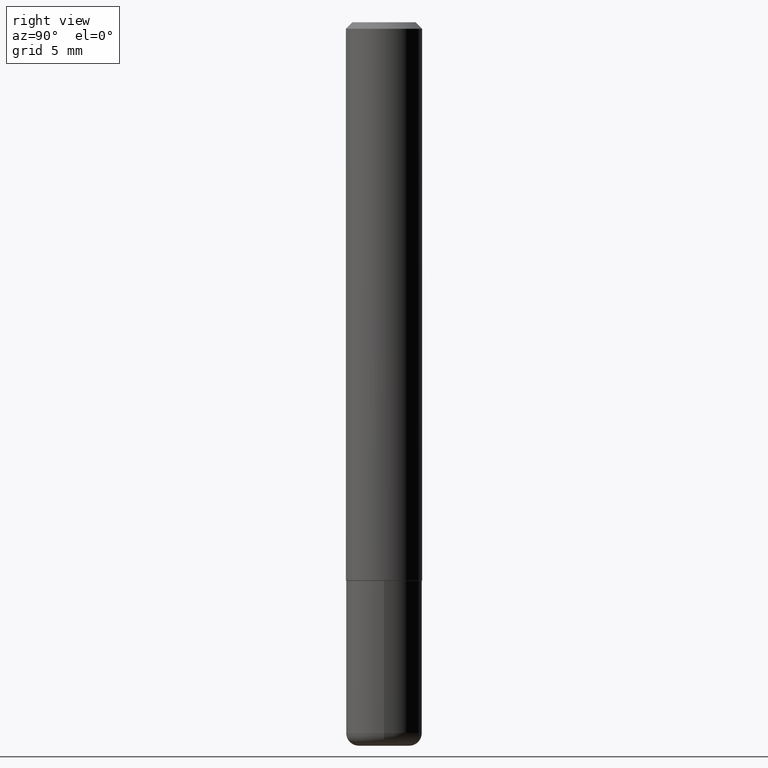
[diagram: clean part render]
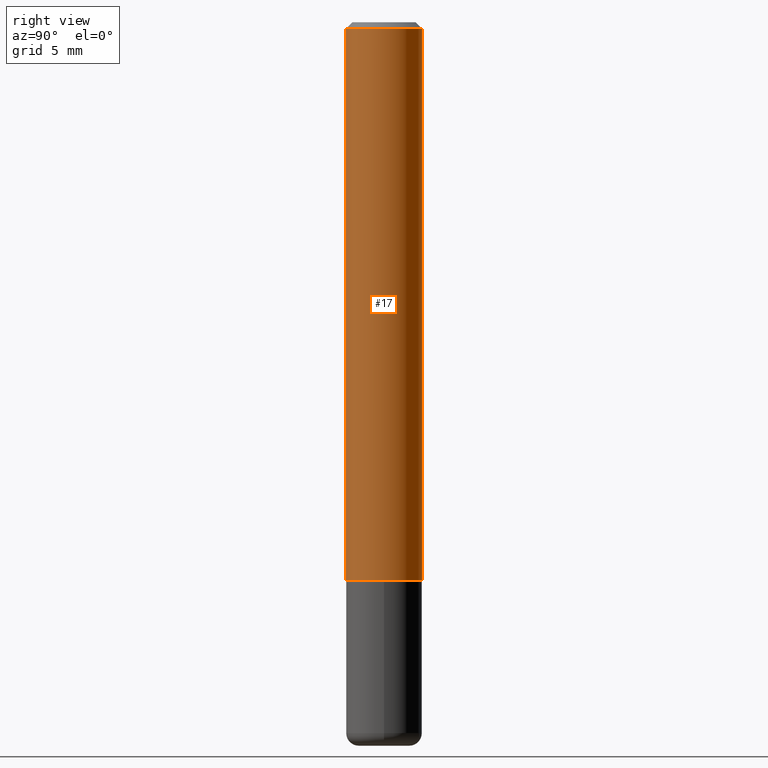
[diagram: same view with one face highlighted and labeled with its STEP entity id]
A machine part, right view. The second image highlights one B-rep face of the part: STEP entity #17.
In plain terms, the highlighted cylindrical surface (partial cylindrical patch) has radius 2.9997 mm, axis along (-0, 0, 1).
Its self-contained STEP definition (entity closure, byte-faithful):
#17 = ADVANCED_FACE ( 'NONE', ( #155 ), #46, .T. ) ;
#35 = ORIENTED_EDGE ( 'NONE', *, *, #110, .F. ) ;
#38 = VERTEX_POINT ( 'NONE', #307 ) ;
#46 = CYLINDRICAL_SURFACE ( 'NONE', #276, 0.1181000000000001354 ) ;
#53 = DIRECTION ( 'NONE',  ( -2.453207642472712595E-29, 3.480398884812129340E-15, 1.000000000000000000 ) ) ;
#63 = VERTEX_POINT ( 'NONE', #111 ) ;
#73 = EDGE_CURVE ( 'NONE', #169, #63, #89, .T. ) ;
#78 = EDGE_CURVE ( 'NONE', #79, #38, #246, .T. ) ;
#79 = VERTEX_POINT ( 'NONE', #118 ) ;
#83 = VECTOR ( 'NONE', #344, 39.37007874015748143 ) ;
#85 = CARTESIAN_POINT ( 'NONE',  ( -8.246878922347070446E-16, -0.1181000000000062417, -1.731299999999999395 ) ) ;
#89 = LINE ( 'NONE', #220, #231 ) ;
#110 = EDGE_CURVE ( 'NONE', #63, #38, #249, .T. ) ;
#111 = CARTESIAN_POINT ( 'NONE',  ( -8.102248135368175393E-16, -0.1181000000000001077, -0.01999999999999966735 ) ) ;
#118 = CARTESIAN_POINT ( 'NONE',  ( 8.391509709327008768E-16, 0.1180999999999941957, -1.731300000000000505 ) ) ;
#155 = FACE_OUTER_BOUND ( 'NONE', #391, .T. ) ;
#169 = VERTEX_POINT ( 'NONE', #85 ) ;
#184 = CARTESIAN_POINT ( 'NONE',  ( 4.906415284945444248E-31, -6.960797769624284960E-17, -0.02000000000000007674 ) ) ;
#185 = CARTESIAN_POINT ( 'NONE',  ( 0.000000000000000000, 0.000000000000000000, 0.000000000000000000 ) ) ;
#187 = DIRECTION ( 'NONE',  ( -2.453207642472712595E-29, 3.480398884812129340E-15, 1.000000000000000000 ) ) ;
#188 = EDGE_CURVE ( 'NONE', #169, #79, #339, .T. ) ;
#218 = CARTESIAN_POINT ( 'NONE',  ( 4.247238391413007302E-29, -6.025614589275239241E-15, -1.731299999999999839 ) ) ;
#220 = CARTESIAN_POINT ( 'NONE',  ( -8.246878922347489529E-16, -0.1181000000000001354, 4.110351082963129416E-16 ) ) ;
#231 = VECTOR ( 'NONE', #255, 39.37007874015748143 ) ;
#232 = AXIS2_PLACEMENT_3D ( 'NONE', #218, #187, #312 ) ;
#246 = LINE ( 'NONE', #368, #83 ) ;
#249 = CIRCLE ( 'NONE', #380, 0.1181000000000000383 ) ;
#255 = DIRECTION ( 'NONE',  ( -2.453207642472712315E-29, 3.480398884812129340E-15, 1.000000000000000000 ) ) ;
#276 = AXIS2_PLACEMENT_3D ( 'NONE', #185, #375, #403 ) ;
#279 = DIRECTION ( 'NONE',  ( -6.982962677686265922E-15, -1.000000000000000000, 3.469747663417776213E-15 ) ) ;
#307 = CARTESIAN_POINT ( 'NONE',  ( 8.246878922347486570E-16, 0.1180999999999999689, -0.02000000000000048614 ) ) ;
#312 = DIRECTION ( 'NONE',  ( -6.982962677686265922E-15, -1.000000000000000000, 4.626330217890360659E-15 ) ) ;
#337 = ORIENTED_EDGE ( 'NONE', *, *, #78, .T. ) ;
#339 = CIRCLE ( 'NONE', #232, 0.1181000000000002187 ) ;
#344 = DIRECTION ( 'NONE',  ( -2.453207642472712315E-29, 3.480398884812129340E-15, 1.000000000000000000 ) ) ;
#361 = ORIENTED_EDGE ( 'NONE', *, *, #188, .T. ) ;
#368 = CARTESIAN_POINT ( 'NONE',  ( 8.391509709326791832E-16, 0.1181000000000001354, -4.110351082963129416E-16 ) ) ;
#375 = DIRECTION ( 'NONE',  ( -2.453207642472712595E-29, 3.480398884812129340E-15, 1.000000000000000000 ) ) ;
#380 = AXIS2_PLACEMENT_3D ( 'NONE', #184, #53, #279 ) ;
#391 = EDGE_LOOP ( 'NONE', ( #361, #337, #35, #394 ) ) ;
#394 = ORIENTED_EDGE ( 'NONE', *, *, #73, .F. ) ;
#403 = DIRECTION ( 'NONE',  ( -6.982962677686265922E-15, -1.000000000000000000, 3.480398884812129340E-15 ) ) ;